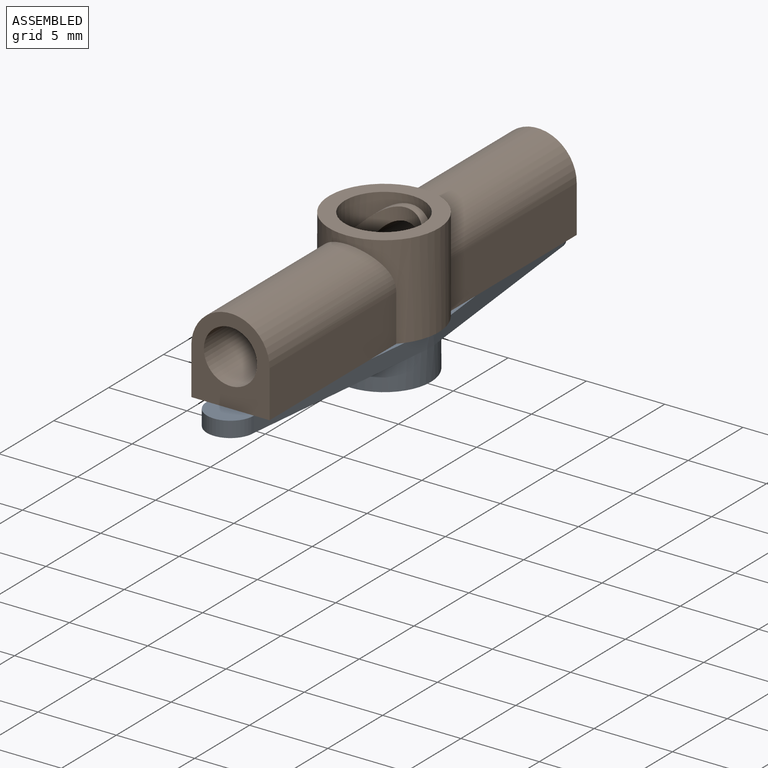
[diagram: assembled view]
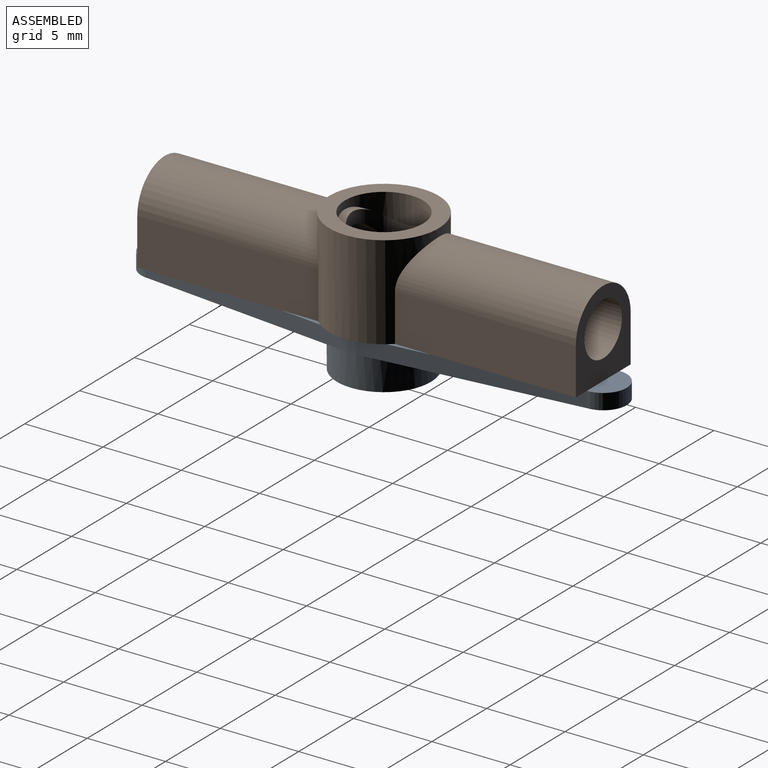
[diagram: assembled view, second angle]
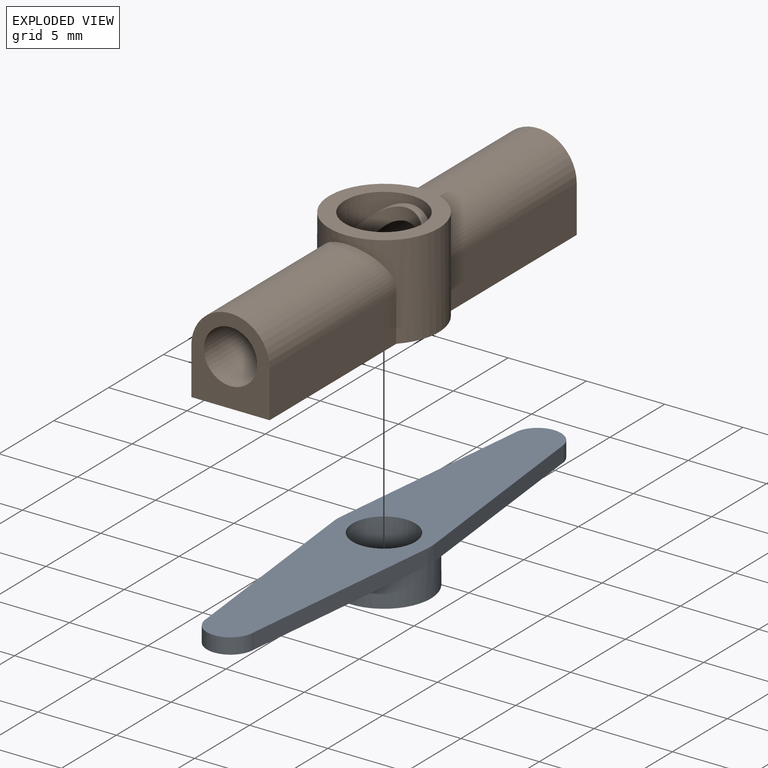
[diagram: exploded view]
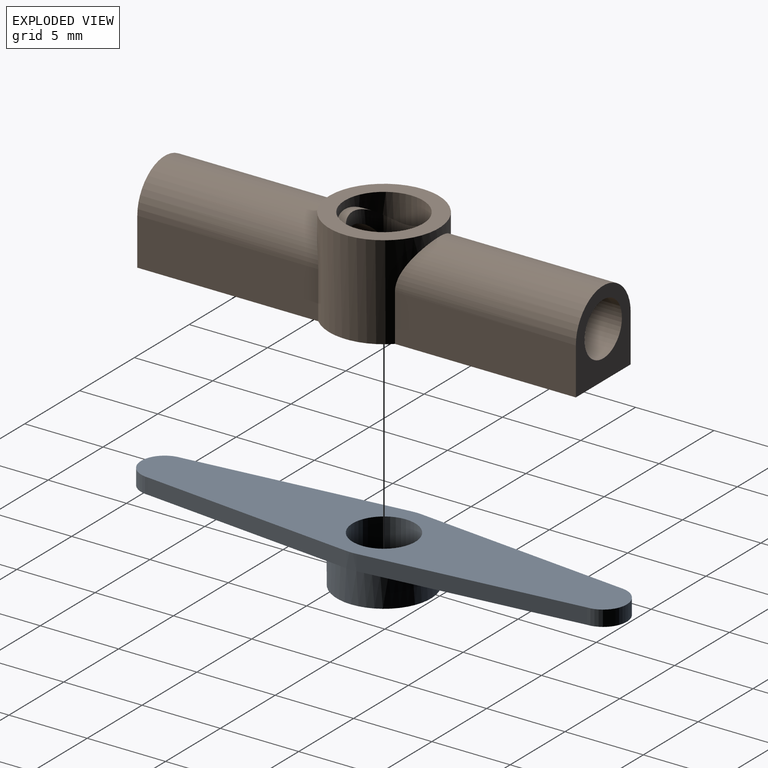
[diagram: exploded view, second angle]
ASSEMBLY  parts=2 mates=2
PART A: 12 faces, bbox 6x31x3 mm
  f0: plane 15.18x5.97mm, normal (0,0,-1), area 52.6mm2, adj f1,f2,f3,f7
  f1: plane 13.68x1.48mm, normal (0.99,0.11,0), area 13.8mm2, adj f0,f2,f7,f9
  f2: cylinder r=1.5mm len=3mm, axis (0,0,-1), area 4.7mm2, adj f0,f1,f3,f9
  f3: plane 13.68x1.48mm, normal (-0.99,0.11,0), area 13.8mm2, adj f0,f2,f7,f9
  f4: plane 13.68x1.48mm, normal (-0.99,-0.11,0), area 13.8mm2, adj f5,f7,f9,f10
  f5: cylinder r=1.5mm len=3mm, axis (0,0,-1), area 4.7mm2, adj f4,f6,f9,f10
  f6: plane 13.68x1.48mm, normal (0.99,-0.11,0), area 13.8mm2, adj f5,f7,f9,f10
  f7: cylinder r=3mm len=6mm, axis (0,0,-1), area 39mm2, adj f0,f1,f3,f4,f6,f9,f10,f11
  f8: cylinder r=2mm len=4mm, axis (0,0,-1), area 37.7mm2, adj f9,f11
  f9: plane 31x6mm, normal (0,0,1), area 121mm2, adj f1,f2,f3,f4,f5,f6,f7,f8
  f10: plane 15.18x5.97mm, normal (0,0,-1), area 52.6mm2, adj f4,f5,f6,f7
  f11: plane 6x6mm, normal (0,0,-1), area 15.7mm2, adj f7,f8
PART B: 16 faces, bbox 7x6x28 mm
  f0: plane 11.55x3mm, normal (-1,0,0), area 34.7mm2, adj f2,f7,f10,f15
  f1: plane 11.55x3mm, normal (-1,0,0), area 34.7mm2, adj f3,f7,f11,f15
  f2: cylinder r=2.5mm len=11.55mm, axis (0,0,1), area 86.4mm2, adj f0,f4,f10,f15
  f3: cylinder r=2.5mm len=11.55mm, axis (0,0,1), area 86.4mm2, adj f1,f5,f11,f15
  f4: plane 11.55x3mm, normal (1,0,0), area 34.7mm2, adj f2,f7,f10,f15
  f5: plane 11.55x3mm, normal (1,0,0), area 34.7mm2, adj f3,f7,f11,f15
  f6: cylinder r=1.7mm len=12.95mm, axis (0,0,1), area 132.8mm2, adj f10,f12
  f7: plane 28x7mm, normal (0,1,0), area 134.2mm2, adj f0,f1,f4,f5,f10,f11,f12,f15
  f8: cylinder r=2.5mm len=5.02mm, axis (0,0,1), area 11.1mm2, adj f12,f14
  f9: cylinder r=1.7mm len=12.95mm, axis (0,0,1), area 132.8mm2, adj f11,f12
  f10: plane 5.5x5mm, normal (0,0,-1), area 15.7mm2, adj f0,f2,f4,f6,f7
  f11: plane 5.5x5mm, normal (0,0,1), area 15.7mm2, adj f1,f3,f5,f7,f9
  f12: cylinder r=2mm len=5.5mm, axis (0,-1,0), area 42.7mm2, adj f6,f7,f8,f9
  f13: plane 7x7mm, normal (0,-1,0), area 18.8mm2, adj f14,f15
  f14: cylinder r=2.5mm len=5mm, axis (0,1,0), area 22.1mm2, adj f8,f13
  f15: cylinder r=3.5mm len=7mm, axis (0,1,0), area 77.3mm2, adj f0,f1,f2,f3,f4,f5,f7,f13
PLACE A t=(-3.61,-2.58,-0.25)mm
PLACE B rot(axis=(-1,0,0),90deg) t=(-3.61,-2.58,3.75)mm
MATE cylindrical B.f12 <-> A.f8  axis (0,0,1) through (-3.61,-2.58,6.29)mm
MATE planar B.f7 <-> A.f8  axis (0,0,-1) through (-1.11,5.64,0.75)mm
